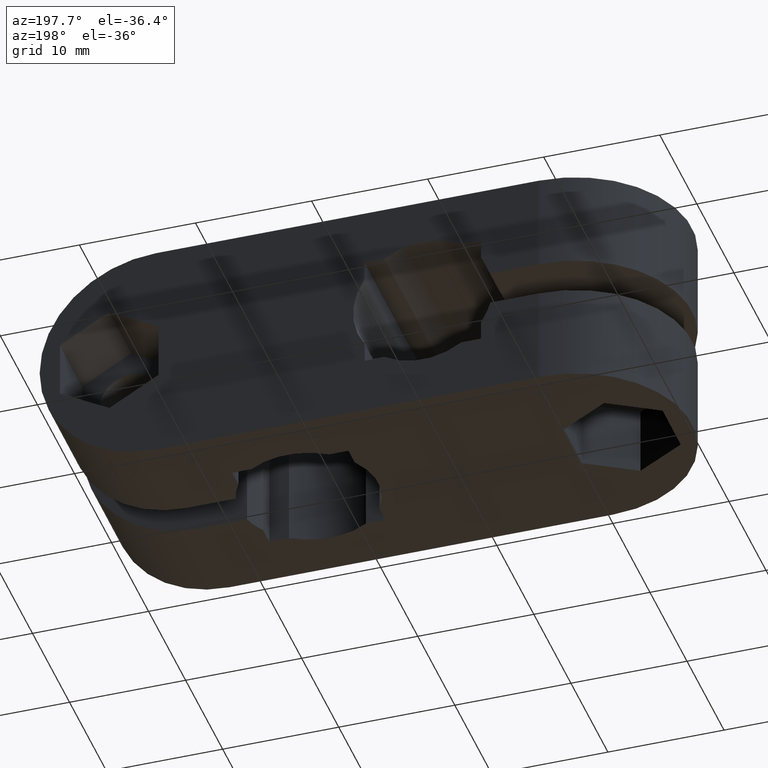
[diagram: clean part render]
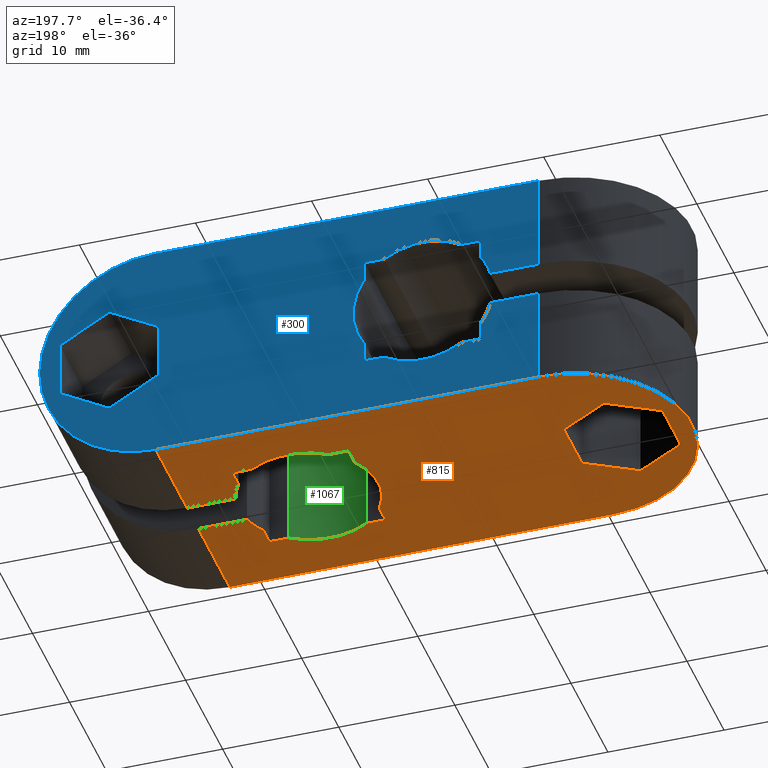
[diagram: same view with three faces highlighted in distinct colors, each labeled with its STEP entity id]
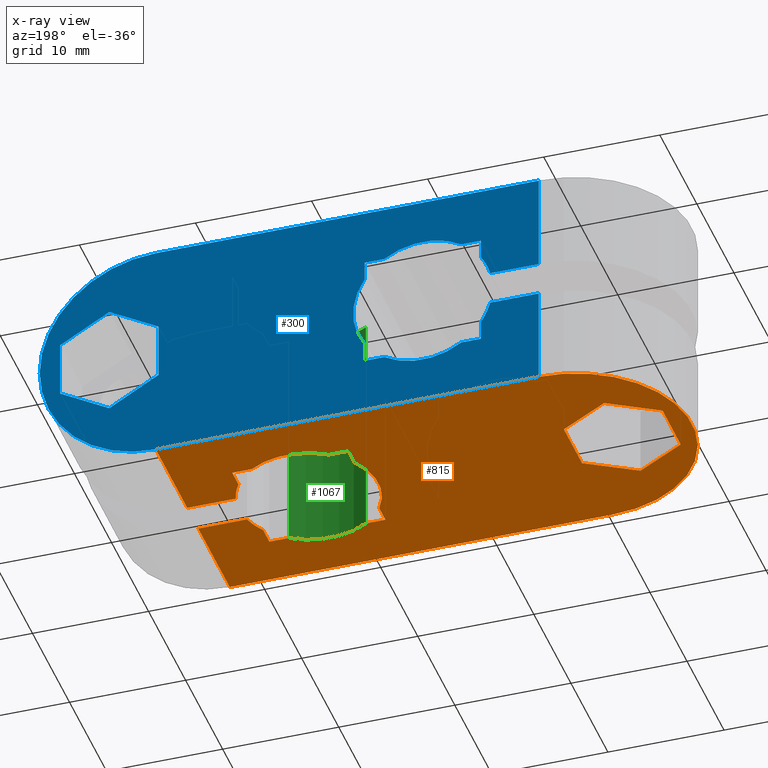
[diagram: x-ray of the same camera — body ghosted, the three highlighted faces saturated]
A machine part, auxiliary view with three faces highlighted in distinct colors.
The next image is the same camera in x-ray (body ghosted, the three faces saturated) — at least one of them is partly hidden behind the body in this view.
Their STEP definitions:

[orange] entity #815 — the highlighted planar face has unit normal (0, 0, 1).
#7=CARTESIAN_POINT('',(-9.999999999999986,0.0,-10.0));
#8=VERTEX_POINT('',#7);
#9=CARTESIAN_POINT('',(-9.999999999999993,-19.999999999999996,-10.0));
#10=VERTEX_POINT('',#9);
#11=CARTESIAN_POINT('',(-9.999999999999986,-10.000000000000011,-10.0));
#12=DIRECTION('',(0.0,0.0,1.0));
#13=DIRECTION('',(0.0,1.0,0.0));
#14=AXIS2_PLACEMENT_3D('',#11,#12,#13);
#15=CIRCLE('',#14,10.000000000000011);
#16=EDGE_CURVE('',#8,#10,#15,.T.);
#91=CARTESIAN_POINT('',(23.0,-1.065814E-014,-10.0));
#92=VERTEX_POINT('',#91);
#93=CARTESIAN_POINT('',(23.0,-5.453002E-015,-10.0));
#94=DIRECTION('',(-1.0,0.0,0.0));
#95=VECTOR('',#94,32.999999999999986);
#96=LINE('',#93,#95);
#97=EDGE_CURVE('',#92,#8,#96,.T.);
#308=CARTESIAN_POINT('',(23.0,-20.000000000000004,-10.0));
#309=VERTEX_POINT('',#308);
#317=CARTESIAN_POINT('',(23.0,-11.500000000000011,-10.0));
#318=VERTEX_POINT('',#317);
#319=CARTESIAN_POINT('',(23.0,-20.000000000000004,-10.0));
#320=DIRECTION('',(0.0,1.0,0.0));
#321=VECTOR('',#320,8.499999999999993);
#322=LINE('',#319,#321);
#323=EDGE_CURVE('',#309,#318,#322,.T.);
#356=CARTESIAN_POINT('',(23.0,-8.500000000000011,-10.0));
#357=VERTEX_POINT('',#356);
#365=CARTESIAN_POINT('',(23.0,-8.500000000000011,-10.0));
#366=DIRECTION('',(0.0,1.0,0.0));
#367=VECTOR('',#366,8.500000000000000);
#368=LINE('',#365,#367);
#369=EDGE_CURVE('',#357,#92,#368,.T.);
#380=CARTESIAN_POINT('',(-9.999999999999993,-19.999999999999996,-10.0));
#381=DIRECTION('',(1.0,0.0,0.0));
#382=VECTOR('',#381,32.999999999999993);
#383=LINE('',#380,#382);
#384=EDGE_CURVE('',#10,#309,#383,.T.);
#630=CARTESIAN_POINT('',(-25.300001006372284,-22.000001048331956,-10.0));
#631=DIRECTION('',(0.0,0.0,1.0));
#632=DIRECTION('',(1.0,0.0,0.0));
#633=AXIS2_PLACEMENT_3D('',#630,#631,#632);
#634=PLANE('',#633);
#635=ORIENTED_EDGE('',*,*,#97,.F.);
#636=ORIENTED_EDGE('',*,*,#369,.F.);
#637=CARTESIAN_POINT('',(18.809475019311122,-8.500000000000011,-10.0));
#638=VERTEX_POINT('',#637);
#639=CARTESIAN_POINT('',(23.0,-8.500000000000011,-10.0));
#640=DIRECTION('',(-1.0,0.0,0.0));
#641=VECTOR('',#640,4.190524980688878);
#642=LINE('',#639,#641);
#643=EDGE_CURVE('',#357,#638,#642,.T.);
#644=ORIENTED_EDGE('',*,*,#643,.T.);
#645=CARTESIAN_POINT('',(18.0,-6.683375209644613,-10.0));
#646=VERTEX_POINT('',#645);
#647=CARTESIAN_POINT('',(13.0,-10.000000000000011,-10.0));
#648=DIRECTION('',(0.0,0.0,1.0));
#649=DIRECTION('',(1.0,0.0,0.0));
#650=AXIS2_PLACEMENT_3D('',#647,#648,#649);
#651=CIRCLE('',#650,6.0);
#652=EDGE_CURVE('',#638,#646,#651,.T.);
#653=ORIENTED_EDGE('',*,*,#652,.T.);
#654=CARTESIAN_POINT('',(18.0,-5.000000000000011,-10.0));
#655=VERTEX_POINT('',#654);
#656=CARTESIAN_POINT('',(18.0,-6.683375209644613,-10.0));
#657=DIRECTION('',(0.0,1.0,0.0));
#658=VECTOR('',#657,1.683375209644602);
#659=LINE('',#656,#658);
#660=EDGE_CURVE('',#646,#655,#659,.T.);
#661=ORIENTED_EDGE('',*,*,#660,.T.);
#662=CARTESIAN_POINT('',(16.316624790355402,-5.000000000000011,-10.0));
#663=VERTEX_POINT('',#662);
#664=CARTESIAN_POINT('',(16.316624790355402,-5.000000000000011,-10.0));
#665=DIRECTION('',(1.0,0.0,0.0));
#666=VECTOR('',#665,1.683375209644598);
#667=LINE('',#664,#666);
#668=EDGE_CURVE('',#663,#655,#667,.T.);
#669=ORIENTED_EDGE('',*,*,#668,.F.);
#670=CARTESIAN_POINT('',(9.683375209644598,-5.000000000000011,-10.0));
#671=VERTEX_POINT('',#670);
#672=CARTESIAN_POINT('',(13.0,-10.000000000000011,-10.0));
#673=DIRECTION('',(0.0,0.0,-1.0));
#674=DIRECTION('',(1.0,0.0,0.0));
#675=AXIS2_PLACEMENT_3D('',#672,#673,#674);
#676=CIRCLE('',#675,6.0);
#677=EDGE_CURVE('',#671,#663,#676,.T.);
#678=ORIENTED_EDGE('',*,*,#677,.F.);
#679=CARTESIAN_POINT('',(8.0,-5.000000000000011,-10.0));
#680=VERTEX_POINT('',#679);
#681=CARTESIAN_POINT('',(8.0,-5.000000000000011,-10.0));
#682=DIRECTION('',(1.0,0.0,0.0));
#683=VECTOR('',#682,1.683375209644598);
#684=LINE('',#681,#683);
#685=EDGE_CURVE('',#680,#671,#684,.T.);
#686=ORIENTED_EDGE('',*,*,#685,.F.);
#687=CARTESIAN_POINT('',(8.0,-6.683375209644613,-10.0));
#688=VERTEX_POINT('',#687);
#689=CARTESIAN_POINT('',(8.0,-6.683375209644613,-10.0));
#690=DIRECTION('',(0.0,1.0,0.0));
#691=VECTOR('',#690,1.683375209644602);
#692=LINE('',#689,#691);
#693=EDGE_CURVE('',#688,#680,#692,.T.);
#694=ORIENTED_EDGE('',*,*,#693,.F.);
#695=CARTESIAN_POINT('',(8.0,-13.316624790355409,-10.0));
#696=VERTEX_POINT('',#695);
#697=CARTESIAN_POINT('',(13.0,-10.000000000000011,-10.0));
#698=DIRECTION('',(0.0,0.0,-1.0));
#699=DIRECTION('',(1.0,0.0,0.0));
#700=AXIS2_PLACEMENT_3D('',#697,#698,#699);
#701=CIRCLE('',#700,6.0);
#702=EDGE_CURVE('',#696,#688,#701,.T.);
#703=ORIENTED_EDGE('',*,*,#702,.F.);
#704=CARTESIAN_POINT('',(8.0,-15.000000000000011,-10.0));
#705=VERTEX_POINT('',#704);
#706=CARTESIAN_POINT('',(8.0,-15.000000000000011,-10.0));
#707=DIRECTION('',(0.0,1.0,0.0));
#708=VECTOR('',#707,1.683375209644602);
#709=LINE('',#706,#708);
#710=EDGE_CURVE('',#705,#696,#709,.T.);
#711=ORIENTED_EDGE('',*,*,#710,.F.);
#712=CARTESIAN_POINT('',(9.683375209644598,-15.000000000000011,-10.0));
#713=VERTEX_POINT('',#712);
#714=CARTESIAN_POINT('',(9.683375209644598,-15.000000000000011,-10.0));
#715=DIRECTION('',(-1.0,0.0,0.0));
#716=VECTOR('',#715,1.683375209644598);
#717=LINE('',#714,#716);
#718=EDGE_CURVE('',#713,#705,#717,.T.);
#719=ORIENTED_EDGE('',*,*,#718,.F.);
#720=CARTESIAN_POINT('',(16.316624790355398,-15.000000000000011,-10.0));
#721=VERTEX_POINT('',#720);
#722=CARTESIAN_POINT('',(13.0,-10.000000000000011,-10.0));
#723=DIRECTION('',(0.0,0.0,-1.0));
#724=DIRECTION('',(1.0,0.0,0.0));
#725=AXIS2_PLACEMENT_3D('',#722,#723,#724);
#726=CIRCLE('',#725,6.0);
#727=EDGE_CURVE('',#721,#713,#726,.T.);
#728=ORIENTED_EDGE('',*,*,#727,.F.);
#729=CARTESIAN_POINT('',(18.0,-15.000000000000011,-10.0));
#730=VERTEX_POINT('',#729);
#731=CARTESIAN_POINT('',(18.0,-15.000000000000011,-10.0));
#732=DIRECTION('',(-1.0,0.0,0.0));
#733=VECTOR('',#732,1.683375209644602);
#734=LINE('',#731,#733);
#735=EDGE_CURVE('',#730,#721,#734,.T.);
#736=ORIENTED_EDGE('',*,*,#735,.F.);
#737=CARTESIAN_POINT('',(18.0,-13.316624790355416,-10.0));
#738=VERTEX_POINT('',#737);
#739=CARTESIAN_POINT('',(18.0,-15.000000000000011,-10.0));
#740=DIRECTION('',(0.0,1.0,0.0));
#741=VECTOR('',#740,1.683375209644595);
#742=LINE('',#739,#741);
#743=EDGE_CURVE('',#730,#738,#742,.T.);
#744=ORIENTED_EDGE('',*,*,#743,.T.);
#745=CARTESIAN_POINT('',(18.809475019311122,-11.500000000000011,-10.0));
#746=VERTEX_POINT('',#745);
#747=CARTESIAN_POINT('',(13.0,-10.000000000000011,-10.0));
#748=DIRECTION('',(0.0,0.0,1.0));
#749=DIRECTION('',(1.0,0.0,0.0));
#750=AXIS2_PLACEMENT_3D('',#747,#748,#749);
#751=CIRCLE('',#750,6.0);
#752=EDGE_CURVE('',#738,#746,#751,.T.);
#753=ORIENTED_EDGE('',*,*,#752,.T.);
#754=CARTESIAN_POINT('',(23.0,-11.500000000000011,-10.0));
#755=DIRECTION('',(-1.0,0.0,0.0));
#756=VECTOR('',#755,4.190524980688878);
#757=LINE('',#754,#756);
#758=EDGE_CURVE('',#318,#746,#757,.T.);
#759=ORIENTED_EDGE('',*,*,#758,.F.);
#760=ORIENTED_EDGE('',*,*,#323,.F.);
#761=ORIENTED_EDGE('',*,*,#384,.F.);
#762=ORIENTED_EDGE('',*,*,#16,.F.);
#763=EDGE_LOOP('',(#635,#636,#644,#653,#661,#669,#678,#686,#694,#703,#711,#719,#728,#736,#744,#753,#759,#760,#761,#762));
#764=FACE_OUTER_BOUND('',#763,.T.);
#765=CARTESIAN_POINT('',(-13.999999999999996,-5.092522711888183,-10.0));
#766=VERTEX_POINT('',#765);
#767=CARTESIAN_POINT('',(-9.749999999999996,-7.546261355944093,-10.0));
#768=VERTEX_POINT('',#767);
#769=CARTESIAN_POINT('',(-13.999999999999996,-5.092522711888183,-10.0));
#770=DIRECTION('',(0.866025403784439,-0.500000000000000,0.0));
#771=VECTOR('',#770,4.907477288111819);
#772=LINE('',#769,#771);
#773=EDGE_CURVE('',#766,#768,#772,.T.);
#774=ORIENTED_EDGE('',*,*,#773,.F.);
#775=CARTESIAN_POINT('',(-18.250000000000000,-7.546261355944100,-10.0));
#776=VERTEX_POINT('',#775);
#777=CARTESIAN_POINT('',(-18.250000000000000,-7.546261355944100,-10.0));
#778=DIRECTION('',(0.866025403784438,0.500000000000001,0.0));
#779=VECTOR('',#778,4.907477288111823);
#780=LINE('',#777,#779);
#781=EDGE_CURVE('',#776,#766,#780,.T.);
#782=ORIENTED_EDGE('',*,*,#781,.F.);
#783=CARTESIAN_POINT('',(-18.249999999999993,-12.453738644055914,-10.0));
#784=VERTEX_POINT('',#783);
#785=CARTESIAN_POINT('',(-18.249999999999993,-12.453738644055914,-10.0));
#786=DIRECTION('',(0.0,1.0,0.0));
#787=VECTOR('',#786,4.907477288111814);
#788=LINE('',#785,#787);
#789=EDGE_CURVE('',#784,#776,#788,.T.);
#790=ORIENTED_EDGE('',*,*,#789,.F.);
#791=CARTESIAN_POINT('',(-13.999999999999993,-14.907477288111824,-10.0));
#792=VERTEX_POINT('',#791);
#793=CARTESIAN_POINT('',(-13.999999999999993,-14.907477288111824,-10.0));
#794=DIRECTION('',(-0.866025403784439,0.500000000000000,0.0));
#795=VECTOR('',#794,4.907477288111819);
#796=LINE('',#793,#795);
#797=EDGE_CURVE('',#792,#784,#796,.T.);
#798=ORIENTED_EDGE('',*,*,#797,.F.);
#799=CARTESIAN_POINT('',(-9.749999999999996,-12.453738644055914,-10.0));
#800=VERTEX_POINT('',#799);
#801=CARTESIAN_POINT('',(-9.749999999999996,-12.453738644055914,-10.0));
#802=DIRECTION('',(-0.866025403784439,-0.500000000000000,0.0));
#803=VECTOR('',#802,4.907477288111819);
#804=LINE('',#801,#803);
#805=EDGE_CURVE('',#800,#792,#804,.T.);
#806=ORIENTED_EDGE('',*,*,#805,.F.);
#807=CARTESIAN_POINT('',(-9.749999999999996,-7.546261355944093,-10.0));
#808=DIRECTION('',(0.0,-1.0,0.0));
#809=VECTOR('',#808,4.907477288111821);
#810=LINE('',#807,#809);
#811=EDGE_CURVE('',#768,#800,#810,.T.);
#812=ORIENTED_EDGE('',*,*,#811,.F.);
#813=EDGE_LOOP('',(#774,#782,#790,#798,#806,#812));
#814=FACE_BOUND('',#813,.T.);
#815=ADVANCED_FACE('',(#764,#814),#634,.F.);

[blue] entity #300 — the highlighted planar face has unit normal (0, 1, 0).
#7=CARTESIAN_POINT('',(-9.999999999999986,0.0,-10.0));
#8=VERTEX_POINT('',#7);
#26=CARTESIAN_POINT('',(-9.999999999999986,0.0,-1.500000000000000));
#27=VERTEX_POINT('',#26);
#35=CARTESIAN_POINT('',(-9.999999999999986,0.0,-10.0));
#36=DIRECTION('',(0.0,0.0,1.0));
#37=VECTOR('',#36,8.500000000000000);
#38=LINE('',#35,#37);
#39=EDGE_CURVE('',#8,#27,#38,.T.);
#49=CARTESIAN_POINT('',(-9.999999999999986,0.0,1.500000000000000));
#50=VERTEX_POINT('',#49);
#51=CARTESIAN_POINT('',(-9.999999999999986,0.0,10.0));
#52=VERTEX_POINT('',#51);
#53=CARTESIAN_POINT('',(-9.999999999999986,0.0,1.500000000000000));
#54=DIRECTION('',(0.0,0.0,1.0));
#55=VECTOR('',#54,8.500000000000000);
#56=LINE('',#53,#55);
#57=EDGE_CURVE('',#50,#52,#56,.T.);
#86=CARTESIAN_POINT('',(33.0,-7.105427E-015,-10.0));
#87=DIRECTION('',(0.0,1.0,0.0));
#88=DIRECTION('',(-1.0,0.0,0.0));
#89=AXIS2_PLACEMENT_3D('',#86,#87,#88);
#90=PLANE('',#89);
#91=CARTESIAN_POINT('',(23.0,-1.065814E-014,-10.0));
#92=VERTEX_POINT('',#91);
#93=CARTESIAN_POINT('',(23.0,-5.453002E-015,-10.0));
#94=DIRECTION('',(-1.0,0.0,0.0));
#95=VECTOR('',#94,32.999999999999986);
#96=LINE('',#93,#95);
#97=EDGE_CURVE('',#92,#8,#96,.T.);
#98=ORIENTED_EDGE('',*,*,#97,.T.);
#99=ORIENTED_EDGE('',*,*,#39,.T.);
#100=CARTESIAN_POINT('',(-5.809475019311125,0.0,-1.500000000000000));
#101=VERTEX_POINT('',#100);
#102=CARTESIAN_POINT('',(-9.999999999999986,1.614870E-015,-1.500000000000000));
#103=DIRECTION('',(1.0,0.0,0.0));
#104=VECTOR('',#103,4.190524980688861);
#105=LINE('',#102,#104);
#106=EDGE_CURVE('',#27,#101,#105,.T.);
#107=ORIENTED_EDGE('',*,*,#106,.T.);
#108=CARTESIAN_POINT('',(-5.0,0.0,-3.316624790355401));
#109=VERTEX_POINT('',#108);
#110=CARTESIAN_POINT('',(0.0,0.0,0.0));
#111=DIRECTION('',(1.652425E-016,1.0,0.0));
#112=DIRECTION('',(-1.0,1.652425E-016,0.0));
#113=AXIS2_PLACEMENT_3D('',#110,#111,#112);
#114=CIRCLE('',#113,6.0);
#115=EDGE_CURVE('',#109,#101,#114,.T.);
#116=ORIENTED_EDGE('',*,*,#115,.F.);
#117=CARTESIAN_POINT('',(-5.0,0.0,-5.0));
#118=VERTEX_POINT('',#117);
#119=CARTESIAN_POINT('',(-5.0,0.0,-5.0));
#120=DIRECTION('',(0.0,0.0,1.0));
#121=VECTOR('',#120,1.683375209644599);
#122=LINE('',#119,#121);
#123=EDGE_CURVE('',#118,#109,#122,.T.);
#124=ORIENTED_EDGE('',*,*,#123,.F.);
#125=CARTESIAN_POINT('',(-3.316624790355400,-3.552714E-015,-5.0));
#126=VERTEX_POINT('',#125);
#127=CARTESIAN_POINT('',(-3.316624790355400,-2.178454E-015,-5.0));
#128=DIRECTION('',(-1.0,0.0,0.0));
#129=VECTOR('',#128,1.683375209644598);
#130=LINE('',#127,#129);
#131=EDGE_CURVE('',#126,#118,#130,.T.);
#132=ORIENTED_EDGE('',*,*,#131,.F.);
#133=CARTESIAN_POINT('',(3.316624790355400,-3.552714E-015,-5.0));
#134=VERTEX_POINT('',#133);
#135=CARTESIAN_POINT('',(0.0,0.0,0.0));
#136=DIRECTION('',(1.652425E-016,1.0,0.0));
#137=DIRECTION('',(-1.0,1.652425E-016,0.0));
#138=AXIS2_PLACEMENT_3D('',#135,#136,#137);
#139=CIRCLE('',#138,6.0);
#140=EDGE_CURVE('',#134,#126,#139,.T.);
#141=ORIENTED_EDGE('',*,*,#140,.F.);
#142=CARTESIAN_POINT('',(5.000000000000002,-3.552714E-015,-5.0));
#143=VERTEX_POINT('',#142);
#144=CARTESIAN_POINT('',(5.000000000000002,-3.552714E-015,-5.0));
#145=DIRECTION('',(-1.0,0.0,0.0));
#146=VECTOR('',#145,1.683375209644602);
#147=LINE('',#144,#146);
#148=EDGE_CURVE('',#143,#134,#147,.T.);
#149=ORIENTED_EDGE('',*,*,#148,.F.);
#150=CARTESIAN_POINT('',(5.000000000000004,-3.552714E-015,-3.316624790355395));
#151=VERTEX_POINT('',#150);
#152=CARTESIAN_POINT('',(5.000000000000004,-3.552714E-015,-3.316624790355395));
#153=DIRECTION('',(0.0,0.0,-1.0));
#154=VECTOR('',#153,1.683375209644606);
#155=LINE('',#152,#154);
#156=EDGE_CURVE('',#151,#143,#155,.T.);
#157=ORIENTED_EDGE('',*,*,#156,.F.);
#158=CARTESIAN_POINT('',(5.000000000000005,-3.552714E-015,3.316624790355391));
#159=VERTEX_POINT('',#158);
#160=CARTESIAN_POINT('',(0.0,0.0,0.0));
#161=DIRECTION('',(1.652425E-016,1.0,0.0));
#162=DIRECTION('',(-1.0,1.652425E-016,0.0));
#163=AXIS2_PLACEMENT_3D('',#160,#161,#162);
#164=CIRCLE('',#163,6.0);
#165=EDGE_CURVE('',#159,#151,#164,.T.);
#166=ORIENTED_EDGE('',*,*,#165,.F.);
#167=CARTESIAN_POINT('',(5.000000000000005,-3.552714E-015,5.0));
#168=VERTEX_POINT('',#167);
#169=CARTESIAN_POINT('',(5.000000000000005,-3.552714E-015,5.0));
#170=DIRECTION('',(0.0,0.0,-1.0));
#171=VECTOR('',#170,1.683375209644608);
#172=LINE('',#169,#171);
#173=EDGE_CURVE('',#168,#159,#172,.T.);
#174=ORIENTED_EDGE('',*,*,#173,.F.);
#175=CARTESIAN_POINT('',(3.316624790355400,0.0,5.0));
#176=VERTEX_POINT('',#175);
#177=CARTESIAN_POINT('',(3.316624790355400,-1.374260E-015,5.0));
#178=DIRECTION('',(1.0,0.0,0.0));
#179=VECTOR('',#178,1.683375209644604);
#180=LINE('',#177,#179);
#181=EDGE_CURVE('',#176,#168,#180,.T.);
#182=ORIENTED_EDGE('',*,*,#181,.F.);
#183=CARTESIAN_POINT('',(-3.316624790355400,0.0,5.0));
#184=VERTEX_POINT('',#183);
#185=CARTESIAN_POINT('',(0.0,0.0,0.0));
#186=DIRECTION('',(1.652425E-016,1.0,0.0));
#187=DIRECTION('',(-1.0,1.652425E-016,0.0));
#188=AXIS2_PLACEMENT_3D('',#185,#186,#187);
#189=CIRCLE('',#188,6.0);
#190=EDGE_CURVE('',#184,#176,#189,.T.);
#191=ORIENTED_EDGE('',*,*,#190,.F.);
#192=CARTESIAN_POINT('',(-4.999999999999996,0.0,5.0));
#193=VERTEX_POINT('',#192);
#194=CARTESIAN_POINT('',(-4.999999999999996,0.0,5.0));
#195=DIRECTION('',(1.0,0.0,0.0));
#196=VECTOR('',#195,1.683375209644597);
#197=LINE('',#194,#196);
#198=EDGE_CURVE('',#193,#184,#197,.T.);
#199=ORIENTED_EDGE('',*,*,#198,.F.);
#200=CARTESIAN_POINT('',(-4.999999999999996,0.0,3.316624790355405));
#201=VERTEX_POINT('',#200);
#202=CARTESIAN_POINT('',(-4.999999999999997,-4.882352E-031,3.316624790355405));
#203=DIRECTION('',(0.0,0.0,1.0));
#204=VECTOR('',#203,1.683375209644595);
#205=LINE('',#202,#204);
#206=EDGE_CURVE('',#201,#193,#205,.T.);
#207=ORIENTED_EDGE('',*,*,#206,.F.);
#208=CARTESIAN_POINT('',(-5.809475019311125,0.0,1.500000000000000));
#209=VERTEX_POINT('',#208);
#210=CARTESIAN_POINT('',(0.0,0.0,0.0));
#211=DIRECTION('',(1.652425E-016,1.0,0.0));
#212=DIRECTION('',(-1.0,1.652425E-016,0.0));
#213=AXIS2_PLACEMENT_3D('',#210,#211,#212);
#214=CIRCLE('',#213,6.0);
#215=EDGE_CURVE('',#209,#201,#214,.T.);
#216=ORIENTED_EDGE('',*,*,#215,.F.);
#217=CARTESIAN_POINT('',(-5.809475019311125,9.381546E-016,1.500000000000000));
#218=DIRECTION('',(-1.0,0.0,0.0));
#219=VECTOR('',#218,4.190524980688861);
#220=LINE('',#217,#219);
#221=EDGE_CURVE('',#209,#50,#220,.T.);
#222=ORIENTED_EDGE('',*,*,#221,.T.);
#223=ORIENTED_EDGE('',*,*,#57,.T.);
#224=CARTESIAN_POINT('',(23.0,-1.065814E-014,10.0));
#225=VERTEX_POINT('',#224);
#226=CARTESIAN_POINT('',(23.0,-5.453002E-015,10.0));
#227=DIRECTION('',(-1.0,0.0,0.0));
#228=VECTOR('',#227,32.999999999999986);
#229=LINE('',#226,#228);
#230=EDGE_CURVE('',#225,#52,#229,.T.);
#231=ORIENTED_EDGE('',*,*,#230,.F.);
#232=CARTESIAN_POINT('',(33.0,-7.105427E-015,0.0));
#233=VERTEX_POINT('',#232);
#234=CARTESIAN_POINT('',(23.0,-7.105427E-015,0.0));
#235=DIRECTION('',(0.0,-1.0,0.0));
#236=DIRECTION('',(1.0,0.0,0.0));
#237=AXIS2_PLACEMENT_3D('',#234,#235,#236);
#238=CIRCLE('',#237,10.0);
#239=EDGE_CURVE('',#233,#225,#238,.T.);
#240=ORIENTED_EDGE('',*,*,#239,.F.);
#241=CARTESIAN_POINT('',(23.0,-7.105427E-015,0.0));
#242=DIRECTION('',(0.0,1.0,0.0));
#243=DIRECTION('',(1.0,0.0,0.0));
#244=AXIS2_PLACEMENT_3D('',#241,#242,#243);
#245=CIRCLE('',#244,10.0);
#246=EDGE_CURVE('',#233,#92,#245,.T.);
#247=ORIENTED_EDGE('',*,*,#246,.T.);
#248=EDGE_LOOP('',(#98,#99,#107,#116,#124,#132,#141,#149,#157,#166,#174,#182,#191,#199,#207,#216,#222,#223,#231,#240,#247));
#249=FACE_OUTER_BOUND('',#248,.T.);
#250=CARTESIAN_POINT('',(27.000000000000007,-7.105427E-015,-4.907477288111819));
#251=VERTEX_POINT('',#250);
#252=CARTESIAN_POINT('',(22.750000000000007,-1.065814E-014,-2.453738644055911));
#253=VERTEX_POINT('',#252);
#254=CARTESIAN_POINT('',(27.000000000000007,-7.105427E-015,-4.907477288111819));
#255=DIRECTION('',(-0.866025403784439,0.0,0.500000000000000));
#256=VECTOR('',#255,4.907477288111818);
#257=LINE('',#254,#256);
#258=EDGE_CURVE('',#251,#253,#257,.T.);
#259=ORIENTED_EDGE('',*,*,#258,.F.);
#260=CARTESIAN_POINT('',(31.250000000000007,-7.105427E-015,-2.453738644055906));
#261=VERTEX_POINT('',#260);
#262=CARTESIAN_POINT('',(31.250000000000007,-7.105427E-015,-2.453738644055906));
#263=DIRECTION('',(-0.866025403784438,0.0,-0.500000000000001));
#264=VECTOR('',#263,4.907477288111821);
#265=LINE('',#262,#264);
#266=EDGE_CURVE('',#261,#251,#265,.T.);
#267=ORIENTED_EDGE('',*,*,#266,.F.);
#268=CARTESIAN_POINT('',(31.250000000000007,-7.105427E-015,2.453738644055912));
#269=VERTEX_POINT('',#268);
#270=CARTESIAN_POINT('',(31.250000000000007,-7.105427E-015,2.453738644055912));
#271=DIRECTION('',(0.0,0.0,-1.0));
#272=VECTOR('',#271,4.907477288111818);
#273=LINE('',#270,#272);
#274=EDGE_CURVE('',#269,#261,#273,.T.);
#275=ORIENTED_EDGE('',*,*,#274,.F.);
#276=CARTESIAN_POINT('',(27.000000000000007,-7.105427E-015,4.907477288111819));
#277=VERTEX_POINT('',#276);
#278=CARTESIAN_POINT('',(27.000000000000007,-7.105427E-015,4.907477288111819));
#279=DIRECTION('',(0.866025403784439,0.0,-0.500000000000000));
#280=VECTOR('',#279,4.907477288111818);
#281=LINE('',#278,#280);
#282=EDGE_CURVE('',#277,#269,#281,.T.);
#283=ORIENTED_EDGE('',*,*,#282,.F.);
#284=CARTESIAN_POINT('',(22.750000000000007,-1.065814E-014,2.453738644055907));
#285=VERTEX_POINT('',#284);
#286=CARTESIAN_POINT('',(22.750000000000007,-1.065814E-014,2.453738644055907));
#287=DIRECTION('',(0.866025403784438,0.0,0.500000000000000));
#288=VECTOR('',#287,4.907477288111821);
#289=LINE('',#286,#288);
#290=EDGE_CURVE('',#285,#277,#289,.T.);
#291=ORIENTED_EDGE('',*,*,#290,.F.);
#292=CARTESIAN_POINT('',(22.750000000000007,-1.065814E-014,-2.453738644055911));
#293=DIRECTION('',(0.0,0.0,1.0));
#294=VECTOR('',#293,4.907477288111818);
#295=LINE('',#292,#294);
#296=EDGE_CURVE('',#253,#285,#295,.T.);
#297=ORIENTED_EDGE('',*,*,#296,.F.);
#298=EDGE_LOOP('',(#259,#267,#275,#283,#291,#297));
#299=FACE_BOUND('',#298,.T.);
#300=ADVANCED_FACE('',(#249,#299),#90,.T.);

[green] entity #1067 — the highlighted cylindrical surface (partial cylindrical patch) has radius 6 mm, axis along (0, 0, 1).
#712=CARTESIAN_POINT('',(9.683375209644598,-15.000000000000011,-10.0));
#713=VERTEX_POINT('',#712);
#720=CARTESIAN_POINT('',(16.316624790355398,-15.000000000000011,-10.0));
#721=VERTEX_POINT('',#720);
#722=CARTESIAN_POINT('',(13.0,-10.000000000000011,-10.0));
#723=DIRECTION('',(0.0,0.0,-1.0));
#724=DIRECTION('',(1.0,0.0,0.0));
#725=AXIS2_PLACEMENT_3D('',#722,#723,#724);
#726=CIRCLE('',#725,6.0);
#727=EDGE_CURVE('',#721,#713,#726,.T.);
#849=CARTESIAN_POINT('',(16.316624790355398,-15.000000000000011,10.0));
#850=VERTEX_POINT('',#849);
#857=CARTESIAN_POINT('',(9.683375209644602,-15.000000000000011,10.0));
#858=VERTEX_POINT('',#857);
#859=CARTESIAN_POINT('',(13.0,-10.000000000000011,10.0));
#860=DIRECTION('',(0.0,0.0,1.0));
#861=DIRECTION('',(1.0,0.0,0.0));
#862=AXIS2_PLACEMENT_3D('',#859,#860,#861);
#863=CIRCLE('',#862,6.0);
#864=EDGE_CURVE('',#858,#850,#863,.T.);
#1046=CARTESIAN_POINT('',(13.0,-10.000000000000011,10.0));
#1047=DIRECTION('',(0.0,0.0,1.0));
#1048=DIRECTION('',(1.0,0.0,0.0));
#1049=AXIS2_PLACEMENT_3D('',#1046,#1047,#1048);
#1050=CYLINDRICAL_SURFACE('',#1049,6.0);
#1051=ORIENTED_EDGE('',*,*,#864,.T.);
#1052=CARTESIAN_POINT('',(16.316624790355398,-15.000000000000011,10.0));
#1053=DIRECTION('',(0.0,0.0,-1.0));
#1054=VECTOR('',#1053,20.0);
#1055=LINE('',#1052,#1054);
#1056=EDGE_CURVE('',#850,#721,#1055,.T.);
#1057=ORIENTED_EDGE('',*,*,#1056,.T.);
#1058=ORIENTED_EDGE('',*,*,#727,.T.);
#1059=CARTESIAN_POINT('',(9.683375209644602,-15.000000000000011,-10.0));
#1060=DIRECTION('',(0.0,0.0,1.0));
#1061=VECTOR('',#1060,20.0);
#1062=LINE('',#1059,#1061);
#1063=EDGE_CURVE('',#713,#858,#1062,.T.);
#1064=ORIENTED_EDGE('',*,*,#1063,.T.);
#1065=EDGE_LOOP('',(#1051,#1057,#1058,#1064));
#1066=FACE_OUTER_BOUND('',#1065,.T.);
#1067=ADVANCED_FACE('',(#1066),#1050,.F.);